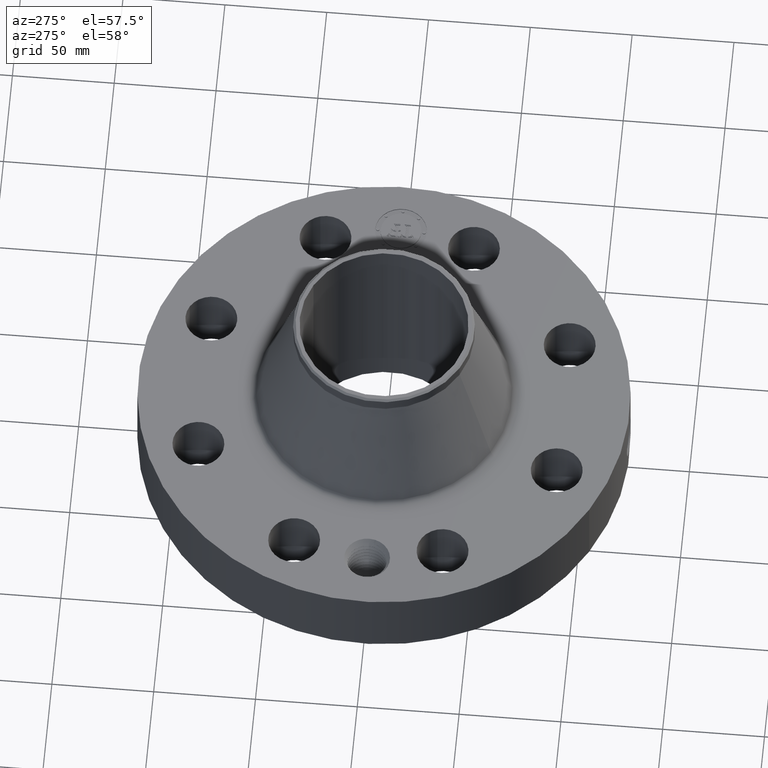
[diagram: clean part render]
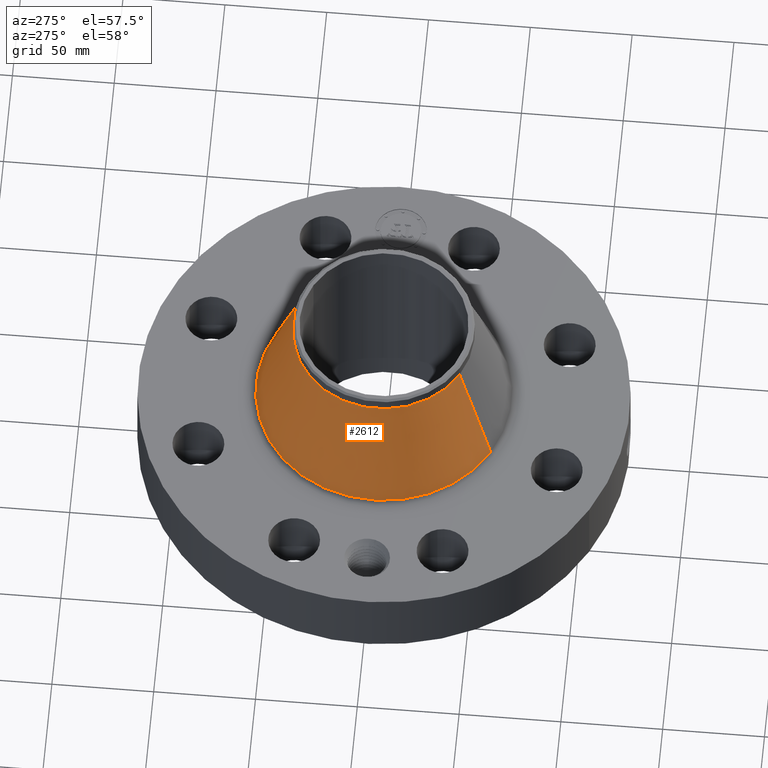
[diagram: same view with one face highlighted and labeled with its STEP entity id]
A machine part, auxiliary view. The second image highlights one B-rep face of the part: STEP entity #2612.
In plain terms, the highlighted conical surface has half-angle 18.573 deg.
Its self-contained STEP definition (entity closure, byte-faithful):
#1987=AXIS2_PLACEMENT_3D('Circle Axis2P3D',#1985,#1986,$) ;
#2573=AXIS2_PLACEMENT_3D('Cone Axis2P3D',#2570,#2571,#2572) ;
#2603=AXIS2_PLACEMENT_3D('Circle Axis2P3D',#2601,#2602,$) ;
#1963=CARTESIAN_POINT('Vertex',(1.18539011021,2.16984204218,1.83177941987)) ;
#1970=CARTESIAN_POINT('Vertex',(-1.18539011021,-2.16984204218,1.83177941987)) ;
#1985=CARTESIAN_POINT('Axis2P3D Location',(0.,0.,1.83177941987)) ;
#2570=CARTESIAN_POINT('Axis2P3D Location',(0.,0.,3.98211973689)) ;
#2575=CARTESIAN_POINT('Line Origine',(1.01219240139,1.85280576275,2.90694957838)) ;
#2579=CARTESIAN_POINT('Vertex',(0.838994692561,1.53576948331,3.98211973689)) ;
#2586=CARTESIAN_POINT('Vertex',(-0.838994692561,-1.53576948331,3.98211973689)) ;
#2589=CARTESIAN_POINT('Line Origine',(-1.01219240139,-1.85280576275,2.90694957838)) ;
#2601=CARTESIAN_POINT('Axis2P3D Location',(0.,0.,3.98211973689)) ;
#1986=DIRECTION('Axis2P3D Direction',(0.,0.,-0.0393700787402)) ;
#2571=DIRECTION('Axis2P3D Direction',(0.,0.,-0.0393700787402)) ;
#2572=DIRECTION('Axis2P3D XDirection',(-0.0188750212049,-0.0345504945626,0.)) ;
#2576=DIRECTION('Vector Direction',(0.0060117855044,0.0110044995514,-0.0373197337166)) ;
#2590=DIRECTION('Vector Direction',(-0.0060117855044,-0.0110044995514,-0.0373197337166)) ;
#2602=DIRECTION('Axis2P3D Direction',(0.,0.,-0.0393700787402)) ;
#2577=VECTOR('Line Direction',#2576,0.0393700787402) ;
#2591=VECTOR('Line Direction',#2590,0.0393700787402) ;
#2607=ORIENTED_EDGE('',*,*,#1989,.F.) ;
#2608=ORIENTED_EDGE('',*,*,#2593,.T.) ;
#2609=ORIENTED_EDGE('',*,*,#2605,.T.) ;
#2610=ORIENTED_EDGE('',*,*,#2581,.F.) ;
#2612=ADVANCED_FACE('PartBody',(#2611),#2574,.T.) ;
#1988=CIRCLE('generated circle',#1987,2.47252183032) ;
#2604=CIRCLE('generated circle',#2603,1.75000000001) ;
#2574=CONICAL_SURFACE('Cone',#2573,1.75000000001,0.324151758563) ;
#1989=EDGE_CURVE('',#1971,#1964,#1988,.T.) ;
#2581=EDGE_CURVE('',#1964,#2580,#2578,.F.) ;
#2593=EDGE_CURVE('',#1971,#2587,#2592,.F.) ;
#2605=EDGE_CURVE('',#2587,#2580,#2604,.T.) ;
#2606=EDGE_LOOP('',(#2607,#2608,#2609,#2610)) ;
#2611=FACE_OUTER_BOUND('',#2606,.T.) ;
#2578=LINE('Line',#2575,#2577) ;
#2592=LINE('Line',#2589,#2591) ;
#1964=VERTEX_POINT('',#1963) ;
#1971=VERTEX_POINT('',#1970) ;
#2580=VERTEX_POINT('',#2579) ;
#2587=VERTEX_POINT('',#2586) ;